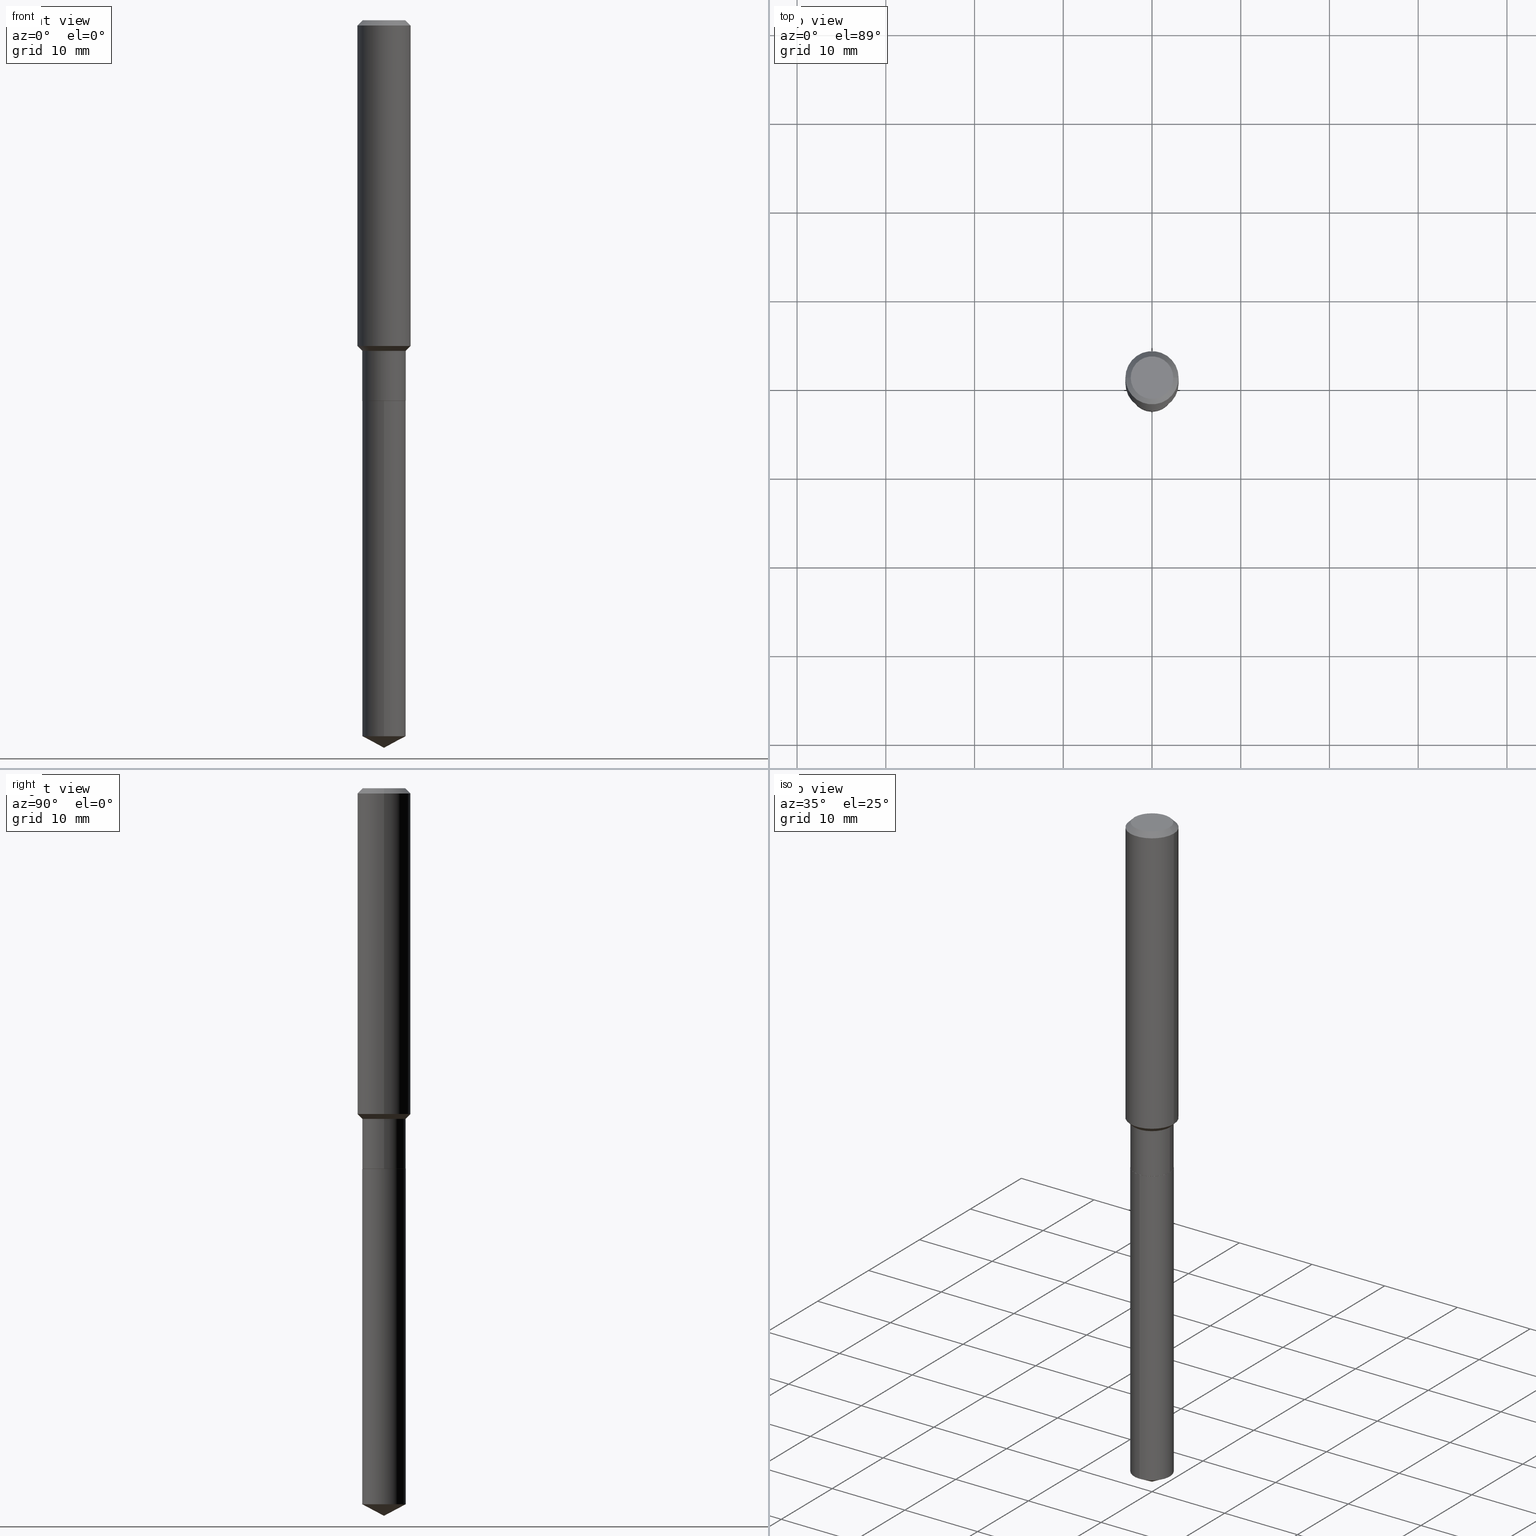
[diagram: canonical four-view strip — front | top / right | iso, engineering-drawing reading convention]
A machine part, canonical four-view strip (front | top / right | iso — engineering-drawing reading convention). The complete STEP part file that produces these views, byte-faithful:
ISO-10303-21;
HEADER;
FILE_DESCRIPTION (( 'STEP AP203' ),
    '1' );
FILE_NAME ('65179.STEP',
    '2024-04-24T21:00:48',
    ( '' ),
    ( '' ),
    'SwSTEP 2.0',
    'SolidWorks 2023',
    '' );
FILE_SCHEMA (( 'CONFIG_CONTROL_DESIGN' ));
ENDSEC;

DATA;
#1 = AXIS2_PLACEMENT_3D ( 'NONE', #356, #323, #246 ) ;
#2 = ORIENTED_EDGE ( 'NONE', *, *, #330, .F. ) ;
#3 = ADVANCED_FACE ( 'NONE', ( #422 ), #490, .T. ) ;
#4 = ORIENTED_EDGE ( 'NONE', *, *, #457, .T. ) ;
#5 = CARTESIAN_POINT ( 'NONE',  ( 5.776197320209327532E-31, -8.246878922347559293E-17, -0.02362000000000014088 ) ) ;
#6 = ORIENTED_EDGE ( 'NONE', *, *, #148, .T. ) ;
#7 = AXIS2_PLACEMENT_3D ( 'NONE', #222, #443, #112 ) ;
#8 = CONICAL_SURFACE ( 'NONE', #380, 0.09644999999999995244, 0.7853981633974526089 ) ;
#9 = CARTESIAN_POINT ( 'NONE',  ( 4.716267017698007905E-46, -6.733579360998555036E-32, -1.928573779297252010E-17 ) ) ;
#10 = APPLICATION_CONTEXT ( 'configuration controlled 3d designs of mechanical parts and assemblies' ) ;
#11 = ORIENTED_EDGE ( 'NONE', *, *, #202, .F. ) ;
#12 = DIRECTION ( 'NONE',  ( -2.445468806185136877E-29, 3.491481338843145188E-15, 1.000000000000000000 ) ) ;
#13 = ORIENTED_EDGE ( 'NONE', *, *, #407, .T. ) ;
#14 = CC_DESIGN_PERSON_AND_ORGANIZATION_ASSIGNMENT ( #22, #437, ( #307 ) ) ;
#15 = VERTEX_POINT ( 'NONE', #156 ) ;
#16 = CIRCLE ( 'NONE', #297, 0.09594999999999997975 ) ;
#17 = DIRECTION ( 'NONE',  ( -2.445468806185136597E-29, 3.491481338843145583E-15, 1.000000000000000000 ) ) ;
#18 = ORIENTED_EDGE ( 'NONE', *, *, #413, .T. ) ;
#19 = CARTESIAN_POINT ( 'NONE',  ( 0.09644999999999999407, -6.568523842765608074E-15, -1.688400000000000123 ) ) ;
#20 = CARTESIAN_POINT ( 'NONE',  ( 4.130152266766077627E-29, -5.896762833172189046E-15, -1.688900000000000068 ) ) ;
#21 = FACE_OUTER_BOUND ( 'NONE', #459, .T. ) ;
#22 = PERSON_AND_ORGANIZATION ( #47, #213 ) ;
#23 = ORIENTED_EDGE ( 'NONE', *, *, #218, .T. ) ;
#24 = DIRECTION ( 'NONE',  ( 1.000000000000000000, -6.982962677686263555E-15, 0.000000000000000000 ) ) ;
#25 = AXIS2_PLACEMENT_3D ( 'NONE', #9, #276, #45 ) ;
#26 = LINE ( 'NONE', #402, #212 ) ;
#27 = APPROVAL_PERSON_ORGANIZATION ( #398, #75, #216 ) ;
#28 = ORIENTED_EDGE ( 'NONE', *, *, #413, .F. ) ;
#29 = ADVANCED_FACE ( 'NONE', ( #195 ), #168, .T. ) ;
#30 = CARTESIAN_POINT ( 'NONE',  ( 4.130152266766077627E-29, -5.896762833172189046E-15, -1.688900000000000068 ) ) ;
#31 = PLANE ( 'NONE',  #366 ) ;
#32 = CALENDAR_DATE ( 2024, 24, 4 ) ;
#33 = VERTEX_POINT ( 'NONE', #256 ) ;
#34 = CC_DESIGN_DATE_AND_TIME_ASSIGNMENT ( #259, #220, ( #307 ) ) ;
#35 = LINE ( 'NONE', #92, #170 ) ;
#36 = DIRECTION ( 'NONE',  ( -2.445468806185136597E-29, 3.491481338843145583E-15, 1.000000000000000000 ) ) ;
#37 = APPROVAL_PERSON_ORGANIZATION ( #41, #442, #341 ) ;
#38 = CLOSED_SHELL ( 'NONE', ( #196, #29, #69, #290, #110 ) ) ;
#39 = APPLICATION_CONTEXT ( 'configuration controlled 3d designs of mechanical parts and assemblies' ) ;
#40 = AXIS2_PLACEMENT_3D ( 'NONE', #30, #244, #438 ) ;
#41 = PERSON_AND_ORGANIZATION ( #47, #213 ) ;
#42 = EDGE_CURVE ( 'NONE', #189, #33, #209, .T. ) ;
#43 = CARTESIAN_POINT ( 'NONE',  ( 4.130152266766077627E-29, -5.896762833172189046E-15, -1.688900000000000068 ) ) ;
#44 = ORIENTED_EDGE ( 'NONE', *, *, #286, .F. ) ;
#45 = DIRECTION ( 'NONE',  ( 1.000000000000000000, -6.982962677686267499E-15, 4.875432709231658792E-29 ) ) ;
#46 = ORIENTED_EDGE ( 'NONE', *, *, #466, .F. ) ;
#47 = PERSON ( 'UNSPECIFIED', 'UNSPECIFIED', 'UNSPECIFIED', ('UNSPECIFIED'), ('UNSPECIFIED'), ('UNSPECIFIED') ) ;
#48 = EDGE_LOOP ( 'NONE', ( #199, #283, #333, #52 ) ) ;
#49 = CIRCLE ( 'NONE', #67, 0.1181000000000001632 ) ;
#50 = CARTESIAN_POINT ( 'NONE',  ( 7.894712554585818636E-29, -1.127154250372483285E-14, -3.228299999999999947 ) ) ;
#51 = ORIENTED_EDGE ( 'NONE', *, *, #466, .T. ) ;
#52 = ORIENTED_EDGE ( 'NONE', *, *, #218, .F. ) ;
#53 = EDGE_LOOP ( 'NONE', ( #468, #314, #11 ) ) ;
#54 = AXIS2_PLACEMENT_3D ( 'NONE', #5, #311, #155 ) ;
#55 = DIRECTION ( 'NONE',  ( -0.7071067811865505703, 7.493145998870365204E-15, 0.7071067811865444641 ) ) ;
#56 = ORIENTED_EDGE ( 'NONE', *, *, #148, .F. ) ;
#57 = DIRECTION ( 'NONE',  ( 0.7071067811865459074, -7.319954787623249734E-15, -0.7071067811865491270 ) ) ;
#58 = CC_DESIGN_PERSON_AND_ORGANIZATION_ASSIGNMENT ( #73, #176, ( #157 ) ) ;
#59 = FACE_OUTER_BOUND ( 'NONE', #278, .T. ) ;
#60 = EDGE_LOOP ( 'NONE', ( #85, #160, #312, #123 ) ) ;
#61 = CARTESIAN_POINT ( 'NONE',  ( 3.534802885900305926E-29, -5.046761701230824643E-15, -1.445450000000000124 ) ) ;
#62 = PERSON_AND_ORGANIZATION_ROLE ( 'classification_officer' ) ;
#63 = EDGE_CURVE ( 'NONE', #233, #15, #26, .T. ) ;
#64 = DIRECTION ( 'NONE',  ( 1.000000000000000000, -6.982962677686267499E-15, 4.876176775795936353E-29 ) ) ;
#65 = CARTESIAN_POINT ( 'NONE',  ( 0.1181000000000000799, -8.246878922347486570E-16, 5.758764772215004644E-30 ) ) ;
#66 = APPROVAL_STATUS ( 'not_yet_approved' ) ;
#67 = AXIS2_PLACEMENT_3D ( 'NONE', #481, #282, #320 ) ;
#68 = ORIENTED_EDGE ( 'NONE', *, *, #200, .T. ) ;
#69 = ADVANCED_FACE ( 'NONE', ( #482 ), #120, .T. ) ;
#70 = LINE ( 'NONE', #427, #410 ) ;
#71 = SECURITY_CLASSIFICATION_LEVEL ( 'unclassified' ) ;
#72 = DIRECTION ( 'NONE',  ( 0.7071067811865505703, -2.468850131082288615E-15, 0.7071067811865444641 ) ) ;
#73 = PERSON_AND_ORGANIZATION ( #47, #213 ) ;
#74 = APPROVAL_PERSON_ORGANIZATION ( #365, #154, #288 ) ;
#75 = APPROVAL ( #66, 'UNSPECIFIED' ) ;
#76 = EDGE_LOOP ( 'NONE', ( #426, #340, #51, #28 ) ) ;
#77 = CARTESIAN_POINT ( 'NONE',  ( 0.09644999999999995244, -5.795859022479619040E-15, -1.467100000000000071 ) ) ;
#78 = APPLICATION_PROTOCOL_DEFINITION ( 'international standard', 'config_control_design', 1994, #10 ) ;
#79 = CARTESIAN_POINT ( 'NONE',  ( 0.1181000000000001632, -5.871449593465574484E-15, -1.445450000000000124 ) ) ;
#80 = AXIS2_PLACEMENT_3D ( 'NONE', #106, #441, #364 ) ;
#81 = EDGE_LOOP ( 'NONE', ( #419, #345, #93, #56 ) ) ;
#82 = AXIS2_PLACEMENT_3D ( 'NONE', #261, #489, #263 ) ;
#83 = CARTESIAN_POINT ( 'NONE',  ( -0.09447999999999998066, 7.009847083995354710E-16, -1.928573779297727792E-17 ) ) ;
#84 = ORIENTED_EDGE ( 'NONE', *, *, #461, .F. ) ;
#85 = ORIENTED_EDGE ( 'NONE', *, *, #264, .F. ) ;
#86 = AXIS2_PLACEMENT_3D ( 'NONE', #235, #318, #315 ) ;
#87 = CC_DESIGN_APPROVAL ( #75, ( #178 ) ) ;
#88 = DIRECTION ( 'NONE',  ( -6.982962677686265133E-15, -1.000000000000000000, 2.832398127179122126E-15 ) ) ;
#89 = CARTESIAN_POINT ( 'NONE',  ( 5.776197320209327532E-31, -8.246878922347559293E-17, -0.02362000000000014088 ) ) ;
#90 = ORIENTED_EDGE ( 'NONE', *, *, #102, .T. ) ;
#91 = EDGE_CURVE ( 'NONE', #383, #347, #295, .T. ) ;
#92 = CARTESIAN_POINT ( 'NONE',  ( -0.09644999999999995244, -4.437033803576162415E-15, -1.467100000000000071 ) ) ;
#93 = ORIENTED_EDGE ( 'NONE', *, *, #243, .F. ) ;
#94 = CIRCLE ( 'NONE', #421, 0.09644999999999999407 ) ;
#95 = CARTESIAN_POINT ( 'NONE',  ( 7.894605880605026875E-29, -1.127169393902797824E-14, -3.228299999999999947 ) ) ;
#96 = CARTESIAN_POINT ( 'NONE',  ( -0.09594999999999997975, -5.212347851036261861E-15, -1.688900000000000068 ) ) ;
#97 = DIRECTION ( 'NONE',  ( 0.7071067811866199593, -2.468850131083015945E-15, 0.7071067811864750752 ) ) ;
#98 = PERSON_AND_ORGANIZATION ( #47, #213 ) ;
#99 = CARTESIAN_POINT ( 'NONE',  ( -0.1181000000000000799, 8.391509709326788873E-16, -5.809262341591047988E-30 ) ) ;
#100 = LINE ( 'NONE', #393, #232 ) ;
#101 = PERSON_AND_ORGANIZATION_ROLE ( 'design_supplier' ) ;
#102 = EDGE_CURVE ( 'NONE', #411, #266, #357, .T. ) ;
#103 = FACE_OUTER_BOUND ( 'NONE', #48, .T. ) ;
#104 = CIRCLE ( 'NONE', #373, 0.09644999999999999407 ) ;
#105 = AXIS2_PLACEMENT_3D ( 'NONE', #208, #396, #284 ) ;
#106 = CARTESIAN_POINT ( 'NONE',  ( 4.128929532362984826E-29, -5.895017092502767543E-15, -1.688400000000000123 ) ) ;
#107 = DIRECTION ( 'NONE',  ( -6.165590087286828929E-15, -0.8829475928589255451, 0.4694715627858933038 ) ) ;
#108 = DIMENSIONAL_EXPONENTS ( 1.000000000000000000, 0.000000000000000000, 0.000000000000000000, 0.000000000000000000, 0.000000000000000000, 0.000000000000000000, 0.000000000000000000 ) ;
#109 = DIRECTION ( 'NONE',  ( 1.000000000000000000, -6.982962677686266711E-15, 4.876176775795936353E-29 ) ) ;
#110 = ADVANCED_FACE ( 'NONE', ( #207 ), #355, .F. ) ;
#111 =( NAMED_UNIT ( * ) SI_UNIT ( $, .STERADIAN. ) SOLID_ANGLE_UNIT ( ) );
#112 = DIRECTION ( 'NONE',  ( 1.000000000000000000, -6.982962677686266711E-15, 0.000000000000000000 ) ) ;
#113 = CIRCLE ( 'NONE', #25, 0.09447999999999998066 ) ;
#114 = ORIENTED_EDGE ( 'NONE', *, *, #322, .F. ) ;
#115 = LOCAL_TIME ( 17, 0, 48.00000000000000000, #149 ) ;
#116 = DIRECTION ( 'NONE',  ( -2.445468806185136597E-29, 3.491481338843145583E-15, 1.000000000000000000 ) ) ;
#117 = DIRECTION ( 'NONE',  ( 1.000000000000000000, 0.000000000000000000, 0.000000000000000000 ) ) ;
#118 = ADVANCED_FACE ( 'NONE', ( #471 ), #324, .F. ) ;
#119 = UNCERTAINTY_MEASURE_WITH_UNIT (LENGTH_MEASURE( 1.000000000000000082E-05 ), #447, 'distance_accuracy_value', 'NONE');
#120 = CONICAL_SURFACE ( 'NONE', #414, 74.04434902938325536, 1.082104136236484937 ) ;
#121 = VERTEX_POINT ( 'NONE', #429 ) ;
#122 = AXIS2_PLACEMENT_3D ( 'NONE', #43, #449, #409 ) ;
#123 = ORIENTED_EDGE ( 'NONE', *, *, #63, .F. ) ;
#124 = ORIENTED_EDGE ( 'NONE', *, *, #200, .F. ) ;
#125 = MANIFOLD_SOLID_BREP ( 'Body-Move/Copy2[1]', #38 ) ;
#126 = CARTESIAN_POINT ( 'NONE',  ( 0.000000000000000000, 0.000000000000000000, 0.000000000000000000 ) ) ;
#127 = VERTEX_POINT ( 'NONE', #96 ) ;
#128 = AXIS2_PLACEMENT_3D ( 'NONE', #126, #376, #64 ) ;
#129 = CARTESIAN_POINT ( 'NONE',  ( -6.735067502627990177E-16, -0.09645000000000587825, -1.688899999999999846 ) ) ;
#130 = VERTEX_POINT ( 'NONE', #390 ) ;
#131 = LINE ( 'NONE', #349, #379 ) ;
#132 = ORIENTED_EDGE ( 'NONE', *, *, #243, .T. ) ;
#133 = MANIFOLD_SOLID_BREP ( 'Body-Move/Copy2[2]', #336 ) ;
#134 = CARTESIAN_POINT ( 'NONE',  ( 0.1180999999999999966, -8.926936027602933910E-16, -0.02362000000000014088 ) ) ;
#135 = DIRECTION ( 'NONE',  ( -2.438088387897960049E-29, 3.491481338843145188E-15, 1.000000000000000000 ) ) ;
#136 = CC_DESIGN_APPROVAL ( #154, ( #157 ) ) ;
#137 = LINE ( 'NONE', #431, #415 ) ;
#138 = DIRECTION ( 'NONE',  ( -2.445468806185136877E-29, 3.491481338843145188E-15, 1.000000000000000000 ) ) ;
#139 = APPROVAL_DATE_TIME ( #474, #442 ) ;
#140 = ADVANCED_FACE ( 'NONE', ( #59 ), #31, .F. ) ;
#141 = LINE ( 'NONE', #289, #229 ) ;
#142 = CALENDAR_DATE ( 2024, 24, 4 ) ;
#143 = DIRECTION ( 'NONE',  ( -2.445468806185136597E-29, 3.491481338843145583E-15, 1.000000000000000000 ) ) ;
#144 = CYLINDRICAL_SURFACE ( 'NONE', #464, 0.09644999999999996632 ) ;
#145 = AXIS2_PLACEMENT_3D ( 'NONE', #20, #321, #245 ) ;
#146 = DIRECTION ( 'NONE',  ( 1.000000000000000000, -6.982962677686269866E-15, 0.000000000000000000 ) ) ;
#147 = DIRECTION ( 'NONE',  ( -2.445437499800212978E-29, 3.491526171368205144E-15, 1.000000000000000000 ) ) ;
#148 = EDGE_CURVE ( 'NONE', #383, #204, #100, .T. ) ;
#149 = COORDINATED_UNIVERSAL_TIME_OFFSET ( 5, 0, .BEHIND. ) ;
#150 = ADVANCED_FACE ( 'NONE', ( #397 ), #144, .T. ) ;
#151 = CYLINDRICAL_SURFACE ( 'NONE', #254, 0.1181000000000000799 ) ;
#152 = CIRCLE ( 'NONE', #40, 0.09644999999999999407 ) ;
#153 = PERSON_AND_ORGANIZATION ( #47, #213 ) ;
#154 = APPROVAL ( #329, 'UNSPECIFIED' ) ;
#155 = DIRECTION ( 'NONE',  ( -1.000000000000000000, 6.982962677686266711E-15, 0.000000000000000000 ) ) ;
#156 = CARTESIAN_POINT ( 'NONE',  ( -0.1180999999999999966, -1.725464274294470473E-15, -0.02362000000000014088 ) ) ;
#157 = PRODUCT_DEFINITION_FORMATION_WITH_SPECIFIED_SOURCE ( 'ANY', '', #158, .NOT_KNOWN. ) ;
#158 = PRODUCT ( '65179', '65179', '', ( #486 ) ) ;
#159 = FACE_OUTER_BOUND ( 'NONE', #60, .T. ) ;
#160 = ORIENTED_EDGE ( 'NONE', *, *, #418, .T. ) ;
#161 = DATE_AND_TIME ( #32, #304 ) ;
#162 = CC_DESIGN_PERSON_AND_ORGANIZATION_ASSIGNMENT ( #394, #62, ( #178 ) ) ;
#163 = DIRECTION ( 'NONE',  ( 6.273719981627760554E-15, 0.8829475928589289868, 0.4694715627858871976 ) ) ;
#164 = ORIENTED_EDGE ( 'NONE', *, *, #247, .F. ) ;
#165 = ADVANCED_FACE ( 'NONE', ( #193 ), #151, .T. ) ;
#166 = CARTESIAN_POINT ( 'NONE',  ( 3.587747285554214477E-29, -5.122352272216779298E-15, -1.467100000000000071 ) ) ;
#167 = CARTESIAN_POINT ( 'NONE',  ( -8.838240816730970341E-28, 1.261900420687104114E-13, 36.14177874015747705 ) ) ;
#168 = CONICAL_SURFACE ( 'NONE', #226, 74.04434902938325536, 1.082104136236484937 ) ;
#169 = CIRCLE ( 'NONE', #82, 0.09644999999999999407 ) ;
#170 = VECTOR ( 'NONE', #55, 39.37007874015748143 ) ;
#171 = ORIENTED_EDGE ( 'NONE', *, *, #448, .T. ) ;
#172 = DIRECTION ( 'NONE',  ( -2.445437499800212978E-29, 3.491526171368205538E-15, 1.000000000000000000 ) ) ;
#173 = DIRECTION ( 'NONE',  ( -6.982962677686266711E-15, -1.000000000000000000, 3.541896320645574279E-15 ) ) ;
#174 = DIRECTION ( 'NONE',  ( -2.445468806185136597E-29, 3.491481338843145583E-15, 1.000000000000000000 ) ) ;
#175 = CARTESIAN_POINT ( 'NONE',  ( 7.894605880605026875E-29, -1.127169393902797824E-14, -3.228299999999999947 ) ) ;
#176 = PERSON_AND_ORGANIZATION_ROLE ( 'creator' ) ;
#177 = ORIENTED_EDGE ( 'NONE', *, *, #404, .F. ) ;
#178 = SECURITY_CLASSIFICATION ( '', '', #71 ) ;
#179 = LINE ( 'NONE', #99, #317 ) ;
#180 = DIRECTION ( 'NONE',  ( -0.7071067811865459074, 2.468850131082240100E-15, -0.7071067811865491270 ) ) ;
#181 = ORIENTED_EDGE ( 'NONE', *, *, #253, .F. ) ;
#182 = CARTESIAN_POINT ( 'NONE',  ( 3.587747285554214477E-29, -5.122352272216779298E-15, -1.467100000000000071 ) ) ;
#183 = CARTESIAN_POINT ( 'NONE',  ( 2.358133508849003952E-46, -3.366789680499277518E-32, -9.642868896486260050E-18 ) ) ;
#184 = EDGE_LOOP ( 'NONE', ( #337, #13, #114, #44 ) ) ;
#185 = DIRECTION ( 'NONE',  ( 1.000000000000000000, -6.982962677686269866E-15, 0.000000000000000000 ) ) ;
#186 = FACE_OUTER_BOUND ( 'NONE', #76, .T. ) ;
#187 = CIRCLE ( 'NONE', #439, 0.1181000000000001632 ) ;
#188 = EDGE_LOOP ( 'NONE', ( #171, #453, #2, #301 ) ) ;
#189 = VERTEX_POINT ( 'NONE', #79 ) ;
#190 = CONICAL_SURFACE ( 'NONE', #54, 0.1180999999999999966, 0.7853981633974460586 ) ;
#191 = AXIS2_PLACEMENT_3D ( 'NONE', #255, #479, #363 ) ;
#192 = CARTESIAN_POINT ( 'NONE',  ( 3.587747285554214477E-29, -5.122352272216779298E-15, -1.467100000000000071 ) ) ;
#193 = FACE_OUTER_BOUND ( 'NONE', #231, .T. ) ;
#194 = LINE ( 'NONE', #129, #269 ) ;
#195 = FACE_OUTER_BOUND ( 'NONE', #53, .T. ) ;
#196 = ADVANCED_FACE ( 'NONE', ( #228 ), #258, .T. ) ;
#197 = CIRCLE ( 'NONE', #227, 0.09644999999999995244 ) ;
#198 = LOCAL_TIME ( 17, 0, 48.00000000000000000, #405 ) ;
#199 = ORIENTED_EDGE ( 'NONE', *, *, #457, .F. ) ;
#200 = EDGE_CURVE ( 'NONE', #15, #33, #428, .T. ) ;
#201 = ORIENTED_EDGE ( 'NONE', *, *, #264, .T. ) ;
#202 = EDGE_CURVE ( 'NONE', #266, #423, #169, .T. ) ;
#203 = DIRECTION ( 'NONE',  ( -2.445468806185136597E-29, 3.491481338843145583E-15, 1.000000000000000000 ) ) ;
#204 = VERTEX_POINT ( 'NONE', #77 ) ;
#205 =( GEOMETRIC_REPRESENTATION_CONTEXT ( 3 ) GLOBAL_UNCERTAINTY_ASSIGNED_CONTEXT ( ( #119 ) ) GLOBAL_UNIT_ASSIGNED_CONTEXT ( ( #447, #262, #111 ) ) REPRESENTATION_CONTEXT ( 'NONE', 'WORKASPACE' ) );
#206 = DIRECTION ( 'NONE',  ( 1.000000000000000000, -6.982962677686267499E-15, 0.000000000000000000 ) ) ;
#207 = FACE_OUTER_BOUND ( 'NONE', #387, .T. ) ;
#208 = CARTESIAN_POINT ( 'NONE',  ( 4.130152266766077627E-29, -5.896762833172189046E-15, -1.688900000000000068 ) ) ;
#209 = LINE ( 'NONE', #65, #444 ) ;
#210 = CARTESIAN_POINT ( 'NONE',  ( 0.000000000000000000, 0.000000000000000000, 0.000000000000000000 ) ) ;
#211 = COORDINATED_UNIVERSAL_TIME_OFFSET ( 5, 0, .BEHIND. ) ;
#212 = VECTOR ( 'NONE', #180, 39.37007874015748143 ) ;
#213 = ORGANIZATION ( 'UNSPECIFIED', 'UNSPECIFIED', '' ) ;
#214 = DIRECTION ( 'NONE',  ( -6.982962677686265133E-15, -1.000000000000000000, 5.664796254358244252E-15 ) ) ;
#215 = CARTESIAN_POINT ( 'NONE',  ( -8.838240816730970341E-28, 1.261900420687104114E-13, 36.14177874015747705 ) ) ;
#216 = APPROVAL_ROLE ( '' ) ;
#217 = EDGE_LOOP ( 'NONE', ( #469, #4, #273, #370 ) ) ;
#218 = EDGE_CURVE ( 'NONE', #347, #383, #104, .T. ) ;
#219 = DATE_TIME_ROLE ( 'classification_date' ) ;
#220 = DATE_TIME_ROLE ( 'creation_date' ) ;
#221 = CONICAL_SURFACE ( 'NONE', #1, 0.09594999999999997975, 0.7853981633975507526 ) ;
#222 = CARTESIAN_POINT ( 'NONE',  ( 5.776197320209327532E-31, -8.246878922347559293E-17, -0.02362000000000014088 ) ) ;
#223 = EDGE_CURVE ( 'NONE', #347, #358, #131, .T. ) ;
#224 = CARTESIAN_POINT ( 'NONE',  ( 4.128929532362984826E-29, -5.895017092502767543E-15, -1.688400000000000123 ) ) ;
#225 = CARTESIAN_POINT ( 'NONE',  ( 0.09644999999999995244, -5.795859022479619040E-15, -1.467100000000000071 ) ) ;
#226 = AXIS2_PLACEMENT_3D ( 'NONE', #167, #310, #456 ) ;
#227 = AXIS2_PLACEMENT_3D ( 'NONE', #166, #17, #342 ) ;
#228 = FACE_OUTER_BOUND ( 'NONE', #184, .T. ) ;
#229 = VECTOR ( 'NONE', #368, 39.37007874015748143 ) ;
#230 = CYLINDRICAL_SURFACE ( 'NONE', #128, 0.09644999999999996632 ) ;
#231 = EDGE_LOOP ( 'NONE', ( #275, #18, #417, #124 ) ) ;
#232 = VECTOR ( 'NONE', #250, 39.37007874015748143 ) ;
#233 = VERTEX_POINT ( 'NONE', #83 ) ;
#234 = LOCAL_TIME ( 17, 0, 48.00000000000000000, #211 ) ;
#235 = CARTESIAN_POINT ( 'NONE',  ( 4.130152266766077627E-29, -5.896762833172189046E-15, -1.688900000000000068 ) ) ;
#236 = DIRECTION ( 'NONE',  ( 2.445468806185136597E-29, -3.491481338843145583E-15, -1.000000000000000000 ) ) ;
#237 = APPROVAL_DATE_TIME ( #161, #75 ) ;
#238 = DIRECTION ( 'NONE',  ( 1.000000000000000000, -6.982962677686264344E-15, 0.000000000000000000 ) ) ;
#239 = ORIENTED_EDGE ( 'NONE', *, *, #418, .F. ) ;
#240 = CARTESIAN_POINT ( 'NONE',  ( -0.09644999999999995244, -4.823366213719156537E-15, -1.467100000000000071 ) ) ;
#241 = ORIENTED_EDGE ( 'NONE', *, *, #223, .F. ) ;
#242 = AXIS2_PLACEMENT_3D ( 'NONE', #192, #36, #488 ) ;
#243 = EDGE_CURVE ( 'NONE', #204, #358, #197, .T. ) ;
#244 = DIRECTION ( 'NONE',  ( -2.445437499800212978E-29, 3.491526171368205144E-15, 1.000000000000000000 ) ) ;
#245 = DIRECTION ( 'NONE',  ( 6.982962677686265922E-15, 1.000000000000000000, -3.491526171368205538E-15 ) ) ;
#246 = DIRECTION ( 'NONE',  ( 1.000000000000000000, -6.982962677686269866E-15, 0.000000000000000000 ) ) ;
#247 = EDGE_CURVE ( 'NONE', #233, #319, #445, .T. ) ;
#248 = DIRECTION ( 'NONE',  ( -1.000000000000000000, 6.982962677686265922E-15, -4.876176775795935793E-29 ) ) ;
#249 = CARTESIAN_POINT ( 'NONE',  ( -0.1181000000000001632, -4.207610730298144868E-15, -1.445450000000000124 ) ) ;
#250 = DIRECTION ( 'NONE',  ( -2.445468806185136877E-29, 3.491481338843145188E-15, 1.000000000000000000 ) ) ;
#251 = DATE_AND_TIME ( #142, #234 ) ;
#252 = ORIENTED_EDGE ( 'NONE', *, *, #448, .F. ) ;
#253 = EDGE_CURVE ( 'NONE', #411, #423, #313, .T. ) ;
#254 = AXIS2_PLACEMENT_3D ( 'NONE', #487, #298, #109 ) ;
#255 = CARTESIAN_POINT ( 'NONE',  ( 5.776197320209327532E-31, -8.246878922347559293E-17, -0.02362000000000014088 ) ) ;
#256 = CARTESIAN_POINT ( 'NONE',  ( 0.1180999999999999966, -9.071566814582237199E-16, -0.02362000000000014088 ) ) ;
#257 = ADVANCED_FACE ( 'NONE', ( #462 ), #296, .T. ) ;
#258 = CYLINDRICAL_SURFACE ( 'NONE', #122, 0.09644999999999999407 ) ;
#259 = DATE_AND_TIME ( #483, #367 ) ;
#260 = CIRCLE ( 'NONE', #465, 0.09594999999999997975 ) ;
#261 = CARTESIAN_POINT ( 'NONE',  ( 7.769248466390578459E-29, -1.109256097651201163E-14, -3.177016625316250398 ) ) ;
#262 =( NAMED_UNIT ( * ) PLANE_ANGLE_UNIT ( ) SI_UNIT ( $, .RADIAN. ) );
#263 = DIRECTION ( 'NONE',  ( -6.982962677686265133E-15, -1.000000000000000000, 5.664796254358244252E-15 ) ) ;
#264 = EDGE_CURVE ( 'NONE', #319, #233, #113, .T. ) ;
#265 = PERSON_AND_ORGANIZATION_ROLE ( 'design_owner' ) ;
#266 = VERTEX_POINT ( 'NONE', #346 ) ;
#267 = ADVANCED_FACE ( 'NONE', ( #159 ), #190, .T. ) ;
#268 = AXIS2_PLACEMENT_3D ( 'NONE', #89, #236, #382 ) ;
#269 = VECTOR ( 'NONE', #280, 39.37007874015748143 ) ;
#270 = CC_DESIGN_SECURITY_CLASSIFICATION ( #178, ( #157 ) ) ;
#271 = CC_DESIGN_PERSON_AND_ORGANIZATION_ASSIGNMENT ( #98, #101, ( #157 ) ) ;
#272 = DIRECTION ( 'NONE',  ( -2.445437499800212978E-29, 3.491526171368205144E-15, 1.000000000000000000 ) ) ;
#273 = ORIENTED_EDGE ( 'NONE', *, *, #91, .F. ) ;
#274 = CARTESIAN_POINT ( 'NONE',  ( 4.130152266766077627E-29, -5.896762833172189046E-15, -1.688900000000000068 ) ) ;
#275 = ORIENTED_EDGE ( 'NONE', *, *, #454, .F. ) ;
#276 = DIRECTION ( 'NONE',  ( -2.445468806185136597E-29, 3.491481338843145583E-15, 1.000000000000000000 ) ) ;
#277 = ADVANCED_BREP_SHAPE_REPRESENTATION ( '65179', ( #125, #133, #388 ), #205 ) ;
#278 = EDGE_LOOP ( 'NONE', ( #351, #201 ) ) ;
#279 = CIRCLE ( 'NONE', #400, 0.09644999999999995244 ) ;
#280 = DIRECTION ( 'NONE',  ( -2.445437499800212978E-29, 3.491526171368205538E-15, 1.000000000000000000 ) ) ;
#281 = ORIENTED_EDGE ( 'NONE', *, *, #407, .F. ) ;
#282 = DIRECTION ( 'NONE',  ( -2.445468806185136597E-29, 3.491481338843145583E-15, 1.000000000000000000 ) ) ;
#283 = ORIENTED_EDGE ( 'NONE', *, *, #339, .T. ) ;
#284 = DIRECTION ( 'NONE',  ( -6.982962677686265133E-15, -1.000000000000000000, 2.832398127179122126E-15 ) ) ;
#285 = DIRECTION ( 'NONE',  ( 1.000000000000000000, -6.982962677686265922E-15, 4.876176775795935793E-29 ) ) ;
#286 = EDGE_CURVE ( 'NONE', #266, #344, #194, .T. ) ;
#287 = CARTESIAN_POINT ( 'NONE',  ( -6.735067502627990177E-16, -0.09645000000000587825, -1.688899999999999846 ) ) ;
#288 = APPROVAL_ROLE ( '' ) ;
#289 = CARTESIAN_POINT ( 'NONE',  ( -0.09594999999999997975, -5.214997078210373062E-15, -1.688900000000000068 ) ) ;
#290 = ADVANCED_FACE ( 'NONE', ( #455 ), #458, .T. ) ;
#291 = CARTESIAN_POINT ( 'NONE',  ( 4.130152266766077627E-29, -5.896762833172189046E-15, -1.688900000000000068 ) ) ;
#292 = ORIENTED_EDGE ( 'NONE', *, *, #286, .T. ) ;
#293 = DIRECTION ( 'NONE',  ( -2.445468806185136597E-29, 3.491481338843145583E-15, 1.000000000000000000 ) ) ;
#294 = ADVANCED_FACE ( 'NONE', ( #416 ), #230, .T. ) ;
#295 = CIRCLE ( 'NONE', #80, 0.09644999999999999407 ) ;
#296 = CONICAL_SURFACE ( 'NONE', #86, 0.09594999999999997975, 0.7853981633975507526 ) ;
#297 = AXIS2_PLACEMENT_3D ( 'NONE', #408, #412, #146 ) ;
#298 = DIRECTION ( 'NONE',  ( -2.445468806185136597E-29, 3.491481338843145583E-15, 1.000000000000000000 ) ) ;
#299 = APPROVAL_DATE_TIME ( #477, #154 ) ;
#300 = DIRECTION ( 'NONE',  ( 0.000000000000000000, 0.000000000000000000, 1.000000000000000000 ) ) ;
#301 = ORIENTED_EDGE ( 'NONE', *, *, #42, .F. ) ;
#302 = CC_DESIGN_PERSON_AND_ORGANIZATION_ASSIGNMENT ( #153, #265, ( #158 ) ) ;
#303 = LENGTH_MEASURE_WITH_UNIT ( LENGTH_MEASURE( 0.02539999999999999897 ), #335 );
#304 = LOCAL_TIME ( 17, 0, 48.00000000000000000, #361 ) ;
#305 = LINE ( 'NONE', #225, #430 ) ;
#306 = DIRECTION ( 'NONE',  ( 1.000000000000000000, -6.982962677686267499E-15, 4.876176775795936353E-29 ) ) ;
#307 = PRODUCT_DEFINITION ( 'UNKNOWN', '', #157, #395 ) ;
#308 = CARTESIAN_POINT ( 'NONE',  ( 4.716267017698007905E-46, -6.733579360998555036E-32, -1.928573779297252010E-17 ) ) ;
#309 = CC_DESIGN_APPROVAL ( #442, ( #307 ) ) ;
#310 = DIRECTION ( 'NONE',  ( -2.445437499800212978E-29, 3.491526171368205144E-15, 1.000000000000000000 ) ) ;
#311 = DIRECTION ( 'NONE',  ( 2.445468806185136597E-29, -3.491481338843145583E-15, -1.000000000000000000 ) ) ;
#312 = ORIENTED_EDGE ( 'NONE', *, *, #330, .T. ) ;
#313 = LINE ( 'NONE', #50, #326 ) ;
#314 = ORIENTED_EDGE ( 'NONE', *, *, #253, .T. ) ;
#315 = DIRECTION ( 'NONE',  ( 1.000000000000000000, -6.982962677686269866E-15, 0.000000000000000000 ) ) ;
#316 = EDGE_LOOP ( 'NONE', ( #241, #23, #6, #378 ) ) ;
#317 = VECTOR ( 'NONE', #476, 39.37007874015748143 ) ;
#318 = DIRECTION ( 'NONE',  ( -2.445468806185136597E-29, 3.491481338843145583E-15, 1.000000000000000000 ) ) ;
#319 = VERTEX_POINT ( 'NONE', #425 ) ;
#320 = DIRECTION ( 'NONE',  ( 1.000000000000000000, -6.982962677686263555E-15, 0.000000000000000000 ) ) ;
#321 = DIRECTION ( 'NONE',  ( 2.445437499800212137E-29, -3.491526171368205538E-15, -1.000000000000000000 ) ) ;
#322 = EDGE_CURVE ( 'NONE', #344, #121, #352, .T. ) ;
#323 = DIRECTION ( 'NONE',  ( -2.445468806185136597E-29, 3.491481338843145583E-15, 1.000000000000000000 ) ) ;
#324 = PLANE ( 'NONE',  #386 ) ;
#325 = EDGE_LOOP ( 'NONE', ( #84, #434 ) ) ;
#326 = VECTOR ( 'NONE', #163, 39.37007874015747433 ) ;
#327 = AXIS2_PLACEMENT_3D ( 'NONE', #210, #174, #472 ) ;
#328 = FACE_OUTER_BOUND ( 'NONE', #188, .T. ) ;
#329 = APPROVAL_STATUS ( 'not_yet_approved' ) ;
#330 = EDGE_CURVE ( 'NONE', #33, #15, #475, .T. ) ;
#331 = CARTESIAN_POINT ( 'NONE',  ( -0.09644999999999999407, -4.823366213719156537E-15, -1.688400000000000123 ) ) ;
#332 = CARTESIAN_POINT ( 'NONE',  ( 0.000000000000000000, 0.000000000000000000, 0.000000000000000000 ) ) ;
#333 = ORIENTED_EDGE ( 'NONE', *, *, #436, .T. ) ;
#334 = DIRECTION ( 'NONE',  ( 1.000000000000000000, -6.982962677686267499E-15, 0.000000000000000000 ) ) ;
#335 =( LENGTH_UNIT ( ) NAMED_UNIT ( * ) SI_UNIT ( $, .METRE. ) );
#336 = CLOSED_SHELL ( 'NONE', ( #257, #267, #377, #369, #294, #150, #484, #165, #3, #140, #118, #348 ) ) ;
#337 = ORIENTED_EDGE ( 'NONE', *, *, #202, .T. ) ;
#338 = EDGE_CURVE ( 'NONE', #358, #399, #35, .T. ) ;
#339 = EDGE_CURVE ( 'NONE', #127, #130, #260, .T. ) ;
#340 = ORIENTED_EDGE ( 'NONE', *, *, #354, .T. ) ;
#341 = APPROVAL_ROLE ( '' ) ;
#342 = DIRECTION ( 'NONE',  ( 1.000000000000000000, -6.982962677686267499E-15, 0.000000000000000000 ) ) ;
#343 = ORIENTED_EDGE ( 'NONE', *, *, #338, .T. ) ;
#344 = VERTEX_POINT ( 'NONE', #287 ) ;
#345 = ORIENTED_EDGE ( 'NONE', *, *, #223, .T. ) ;
#346 = CARTESIAN_POINT ( 'NONE',  ( -6.735067502627625329E-16, -0.09645000000001105467, -3.177016625316249954 ) ) ;
#347 = VERTEX_POINT ( 'NONE', #331 ) ;
#348 = ADVANCED_FACE ( 'NONE', ( #103 ), #221, .T. ) ;
#349 = CARTESIAN_POINT ( 'NONE',  ( -0.09644999999999996632, 6.853184686406163899E-16, -4.744312894550855181E-30 ) ) ;
#350 = VECTOR ( 'NONE', #107, 39.37007874015748143 ) ;
#351 = ORIENTED_EDGE ( 'NONE', *, *, #247, .T. ) ;
#352 = CIRCLE ( 'NONE', #105, 0.09644999999999999407 ) ;
#353 = CYLINDRICAL_SURFACE ( 'NONE', #327, 0.1181000000000000799 ) ;
#354 = EDGE_CURVE ( 'NONE', #358, #204, #279, .T. ) ;
#355 = PLANE ( 'NONE',  #145 ) ;
#356 = CARTESIAN_POINT ( 'NONE',  ( 4.130152266766077627E-29, -5.896762833172189046E-15, -1.688900000000000068 ) ) ;
#357 = LINE ( 'NONE', #175, #350 ) ;
#358 = VERTEX_POINT ( 'NONE', #240 ) ;
#359 = DIRECTION ( 'NONE',  ( -2.445468806185136597E-29, 3.491481338843145583E-15, 1.000000000000000000 ) ) ;
#360 = DIRECTION ( 'NONE',  ( -2.445468806185136597E-29, 3.491481338843145583E-15, 1.000000000000000000 ) ) ;
#361 = COORDINATED_UNIVERSAL_TIME_OFFSET ( 5, 0, .BEHIND. ) ;
#362 = EDGE_LOOP ( 'NONE', ( #281, #406, #292, #177 ) ) ;
#363 = DIRECTION ( 'NONE',  ( 1.000000000000000000, -6.982962677686266711E-15, 0.000000000000000000 ) ) ;
#364 = DIRECTION ( 'NONE',  ( 1.000000000000000000, -6.982962677686264344E-15, 0.000000000000000000 ) ) ;
#365 = PERSON_AND_ORGANIZATION ( #47, #213 ) ;
#366 = AXIS2_PLACEMENT_3D ( 'NONE', #183, #432, #248 ) ;
#367 = LOCAL_TIME ( 17, 0, 48.00000000000000000, #433 ) ;
#368 = DIRECTION ( 'NONE',  ( -0.7071067811866199593, 7.493145998870616062E-15, 0.7071067811864750752 ) ) ;
#369 = ADVANCED_FACE ( 'NONE', ( #21 ), #8, .T. ) ;
#370 = ORIENTED_EDGE ( 'NONE', *, *, #436, .F. ) ;
#371 = EDGE_CURVE ( 'NONE', #423, #266, #94, .T. ) ;
#372 = CC_DESIGN_DATE_AND_TIME_ASSIGNMENT ( #251, #219, ( #178 ) ) ;
#373 = AXIS2_PLACEMENT_3D ( 'NONE', #224, #203, #238 ) ;
#374 = APPLICATION_PROTOCOL_DEFINITION ( 'international standard', 'config_control_design', 1994, #39 ) ;
#375 = DIRECTION ( 'NONE',  ( 1.000000000000000000, -6.982962677686267499E-15, 4.875432709231658792E-29 ) ) ;
#376 = DIRECTION ( 'NONE',  ( -2.445468806185136597E-29, 3.491481338843145583E-15, 1.000000000000000000 ) ) ;
#377 = ADVANCED_FACE ( 'NONE', ( #328 ), #353, .T. ) ;
#378 = ORIENTED_EDGE ( 'NONE', *, *, #354, .F. ) ;
#379 = VECTOR ( 'NONE', #12, 39.37007874015748143 ) ;
#380 = AXIS2_PLACEMENT_3D ( 'NONE', #182, #293, #206 ) ;
#381 = EDGE_LOOP ( 'NONE', ( #239, #164, #480, #68 ) ) ;
#382 = DIRECTION ( 'NONE',  ( -1.000000000000000000, 6.982962677686266711E-15, 0.000000000000000000 ) ) ;
#383 = VERTEX_POINT ( 'NONE', #19 ) ;
#384 = CALENDAR_DATE ( 2024, 24, 4 ) ;
#385 = CARTESIAN_POINT ( 'NONE',  ( 3.587747285554214477E-29, -5.122352272216779298E-15, -1.467100000000000071 ) ) ;
#386 = AXIS2_PLACEMENT_3D ( 'NONE', #291, #135, #285 ) ;
#387 = EDGE_LOOP ( 'NONE', ( #478, #450 ) ) ;
#388 = AXIS2_PLACEMENT_3D ( 'NONE', #451, #300, #117 ) ;
#389 = DIRECTION ( 'NONE',  ( -2.445437499800212978E-29, 3.491526171368205144E-15, 1.000000000000000000 ) ) ;
#390 = CARTESIAN_POINT ( 'NONE',  ( 0.09594999999999997975, -6.566778102096186571E-15, -1.688900000000000068 ) ) ;
#391 = ORIENTED_EDGE ( 'NONE', *, *, #371, .F. ) ;
#392 = CARTESIAN_POINT ( 'NONE',  ( 6.853184686406937969E-16, 0.09644999999998887796, -3.177016625316251286 ) ) ;
#393 = CARTESIAN_POINT ( 'NONE',  ( 0.09644999999999996632, -6.735067502628402357E-16, 4.703072500255178901E-30 ) ) ;
#394 = PERSON_AND_ORGANIZATION ( #47, #213 ) ;
#395 = DESIGN_CONTEXT ( 'detailed design', #39, 'design' ) ;
#396 = DIRECTION ( 'NONE',  ( -2.445437499800212978E-29, 3.491526171368205144E-15, 1.000000000000000000 ) ) ;
#397 = FACE_OUTER_BOUND ( 'NONE', #316, .T. ) ;
#398 = PERSON_AND_ORGANIZATION ( #47, #213 ) ;
#399 = VERTEX_POINT ( 'NONE', #249 ) ;
#400 = AXIS2_PLACEMENT_3D ( 'NONE', #385, #360, #334 ) ;
#401 = CARTESIAN_POINT ( 'NONE',  ( 4.130152266766077627E-29, -5.896762833172189046E-15, -1.688900000000000068 ) ) ;
#402 = CARTESIAN_POINT ( 'NONE',  ( -0.1180999999999999966, 7.422191030112725094E-16, -0.02362000000000014088 ) ) ;
#403 = CALENDAR_DATE ( 2024, 24, 4 ) ;
#404 = EDGE_CURVE ( 'NONE', #121, #344, #152, .T. ) ;
#405 = COORDINATED_UNIVERSAL_TIME_OFFSET ( 5, 0, .BEHIND. ) ;
#406 = ORIENTED_EDGE ( 'NONE', *, *, #371, .T. ) ;
#407 = EDGE_CURVE ( 'NONE', #423, #121, #70, .T. ) ;
#408 = CARTESIAN_POINT ( 'NONE',  ( 4.130152266766077627E-29, -5.896762833172189046E-15, -1.688900000000000068 ) ) ;
#409 = DIRECTION ( 'NONE',  ( -6.982962677686265133E-15, -1.000000000000000000, 2.832398127179122126E-15 ) ) ;
#410 = VECTOR ( 'NONE', #172, 39.37007874015748143 ) ;
#411 = VERTEX_POINT ( 'NONE', #95 ) ;
#412 = DIRECTION ( 'NONE',  ( -2.445468806185136597E-29, 3.491481338843145583E-15, 1.000000000000000000 ) ) ;
#413 = EDGE_CURVE ( 'NONE', #399, #189, #49, .T. ) ;
#414 = AXIS2_PLACEMENT_3D ( 'NONE', #215, #147, #173 ) ;
#415 = VECTOR ( 'NONE', #97, 39.37007874015748143 ) ;
#416 = FACE_OUTER_BOUND ( 'NONE', #81, .T. ) ;
#417 = ORIENTED_EDGE ( 'NONE', *, *, #42, .T. ) ;
#418 = EDGE_CURVE ( 'NONE', #319, #33, #470, .T. ) ;
#419 = ORIENTED_EDGE ( 'NONE', *, *, #91, .T. ) ;
#420 = DIRECTION ( 'NONE',  ( -2.445468806185136597E-29, 3.491481338843145583E-15, 1.000000000000000000 ) ) ;
#421 = AXIS2_PLACEMENT_3D ( 'NONE', #435, #389, #214 ) ;
#422 = FACE_OUTER_BOUND ( 'NONE', #381, .T. ) ;
#423 = VERTEX_POINT ( 'NONE', #392 ) ;
#424 = PRODUCT_RELATED_PRODUCT_CATEGORY ( 'detail', '', ( #158 ) ) ;
#425 = CARTESIAN_POINT ( 'NONE',  ( 0.09447999999999998066, -7.704367267948738690E-16, -1.928573779296752193E-17 ) ) ;
#426 = ORIENTED_EDGE ( 'NONE', *, *, #338, .F. ) ;
#427 = CARTESIAN_POINT ( 'NONE',  ( 6.853184686406577065E-16, 0.09644999999999409601, -1.688900000000000290 ) ) ;
#428 = CIRCLE ( 'NONE', #7, 0.1180999999999999966 ) ;
#429 = CARTESIAN_POINT ( 'NONE',  ( 6.853184686406942899E-16, 0.09644999999999409601, -1.688900000000000290 ) ) ;
#430 = VECTOR ( 'NONE', #72, 39.37007874015748143 ) ;
#431 = CARTESIAN_POINT ( 'NONE',  ( 0.09594999999999997975, -6.566778102096186571E-15, -1.688900000000000068 ) ) ;
#432 = DIRECTION ( 'NONE',  ( 2.438088387897960049E-29, -3.491481338843145188E-15, -1.000000000000000000 ) ) ;
#433 = COORDINATED_UNIVERSAL_TIME_OFFSET ( 5, 0, .BEHIND. ) ;
#434 = ORIENTED_EDGE ( 'NONE', *, *, #339, .F. ) ;
#435 = CARTESIAN_POINT ( 'NONE',  ( 7.769248466390578459E-29, -1.109256097651201163E-14, -3.177016625316250398 ) ) ;
#436 = EDGE_CURVE ( 'NONE', #130, #383, #137, .T. ) ;
#437 = PERSON_AND_ORGANIZATION_ROLE ( 'creator' ) ;
#438 = DIRECTION ( 'NONE',  ( -6.982962677686265133E-15, -1.000000000000000000, 2.832398127179122126E-15 ) ) ;
#439 = AXIS2_PLACEMENT_3D ( 'NONE', #61, #359, #24 ) ;
#440 = APPROVAL_STATUS ( 'not_yet_approved' ) ;
#441 = DIRECTION ( 'NONE',  ( -2.445468806185136597E-29, 3.491481338843145583E-15, 1.000000000000000000 ) ) ;
#442 = APPROVAL ( #440, 'UNSPECIFIED' ) ;
#443 = DIRECTION ( 'NONE',  ( -2.445468806185136597E-29, 3.491481338843145583E-15, 1.000000000000000000 ) ) ;
#444 = VECTOR ( 'NONE', #138, 39.37007874015748143 ) ;
#445 = CIRCLE ( 'NONE', #473, 0.09447999999999998066 ) ;
#446 = VECTOR ( 'NONE', #57, 39.37007874015748143 ) ;
#447 =( CONVERSION_BASED_UNIT ( 'INCH', #303 ) LENGTH_UNIT ( ) NAMED_UNIT ( #108 ) );
#448 = EDGE_CURVE ( 'NONE', #189, #399, #187, .T. ) ;
#449 = DIRECTION ( 'NONE',  ( -2.445437499800212978E-29, 3.491526171368205144E-15, 1.000000000000000000 ) ) ;
#450 = ORIENTED_EDGE ( 'NONE', *, *, #404, .T. ) ;
#451 = CARTESIAN_POINT ( 'NONE',  ( 0.000000000000000000, 0.000000000000000000, 0.000000000000000000 ) ) ;
#452 = PRODUCT_DEFINITION_SHAPE ( 'NONE', 'NONE',  #307 ) ;
#453 = ORIENTED_EDGE ( 'NONE', *, *, #454, .T. ) ;
#454 = EDGE_CURVE ( 'NONE', #399, #15, #179, .T. ) ;
#455 = FACE_OUTER_BOUND ( 'NONE', #362, .T. ) ;
#456 = DIRECTION ( 'NONE',  ( -6.982962677686266711E-15, -1.000000000000000000, 3.541896320645574279E-15 ) ) ;
#457 = EDGE_CURVE ( 'NONE', #127, #347, #141, .T. ) ;
#458 = CYLINDRICAL_SURFACE ( 'NONE', #467, 0.09644999999999999407 ) ;
#459 = EDGE_LOOP ( 'NONE', ( #132, #343, #252, #46 ) ) ;
#460 = SHAPE_DEFINITION_REPRESENTATION ( #452, #277 ) ;
#461 = EDGE_CURVE ( 'NONE', #130, #127, #16, .T. ) ;
#462 = FACE_OUTER_BOUND ( 'NONE', #217, .T. ) ;
#463 = EDGE_LOOP ( 'NONE', ( #181, #90, #391 ) ) ;
#464 = AXIS2_PLACEMENT_3D ( 'NONE', #332, #116, #306 ) ;
#465 = AXIS2_PLACEMENT_3D ( 'NONE', #401, #143, #185 ) ;
#466 = EDGE_CURVE ( 'NONE', #204, #189, #305, .T. ) ;
#467 = AXIS2_PLACEMENT_3D ( 'NONE', #274, #272, #88 ) ;
#468 = ORIENTED_EDGE ( 'NONE', *, *, #102, .F. ) ;
#469 = ORIENTED_EDGE ( 'NONE', *, *, #461, .T. ) ;
#470 = LINE ( 'NONE', #134, #446 ) ;
#471 = FACE_OUTER_BOUND ( 'NONE', #325, .T. ) ;
#472 = DIRECTION ( 'NONE',  ( 1.000000000000000000, -6.982962677686266711E-15, 4.876176775795936353E-29 ) ) ;
#473 = AXIS2_PLACEMENT_3D ( 'NONE', #308, #420, #375 ) ;
#474 = DATE_AND_TIME ( #384, #198 ) ;
#475 = CIRCLE ( 'NONE', #191, 0.1180999999999999966 ) ;
#476 = DIRECTION ( 'NONE',  ( -2.445468806185136877E-29, 3.491481338843145188E-15, 1.000000000000000000 ) ) ;
#477 = DATE_AND_TIME ( #403, #115 ) ;
#478 = ORIENTED_EDGE ( 'NONE', *, *, #322, .T. ) ;
#479 = DIRECTION ( 'NONE',  ( -2.445468806185136597E-29, 3.491481338843145583E-15, 1.000000000000000000 ) ) ;
#480 = ORIENTED_EDGE ( 'NONE', *, *, #63, .T. ) ;
#481 = CARTESIAN_POINT ( 'NONE',  ( 3.534802885900305926E-29, -5.046761701230824643E-15, -1.445450000000000124 ) ) ;
#482 = FACE_OUTER_BOUND ( 'NONE', #463, .T. ) ;
#483 = CALENDAR_DATE ( 2024, 24, 4 ) ;
#484 = ADVANCED_FACE ( 'NONE', ( #186 ), #485, .T. ) ;
#485 = CONICAL_SURFACE ( 'NONE', #242, 0.09644999999999995244, 0.7853981633974526089 ) ;
#486 = MECHANICAL_CONTEXT ( 'NONE', #10, 'mechanical' ) ;
#487 = CARTESIAN_POINT ( 'NONE',  ( 0.000000000000000000, 0.000000000000000000, 0.000000000000000000 ) ) ;
#488 = DIRECTION ( 'NONE',  ( 1.000000000000000000, -6.982962677686267499E-15, 0.000000000000000000 ) ) ;
#489 = DIRECTION ( 'NONE',  ( -2.445437499800212978E-29, 3.491526171368205144E-15, 1.000000000000000000 ) ) ;
#490 = CONICAL_SURFACE ( 'NONE', #268, 0.1180999999999999966, 0.7853981633974460586 ) ;
ENDSEC;
END-ISO-10303-21;
